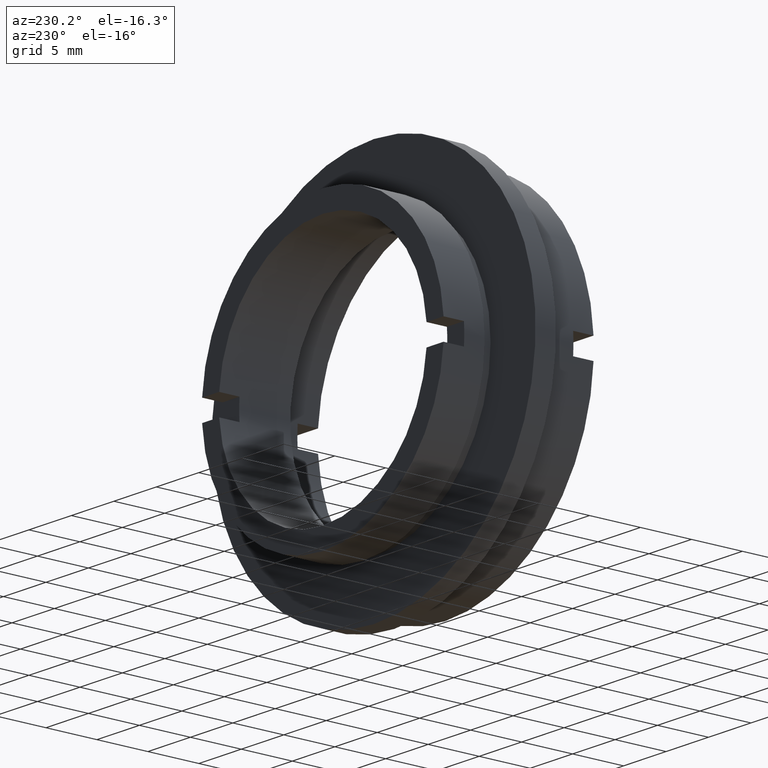
[diagram: clean part render]
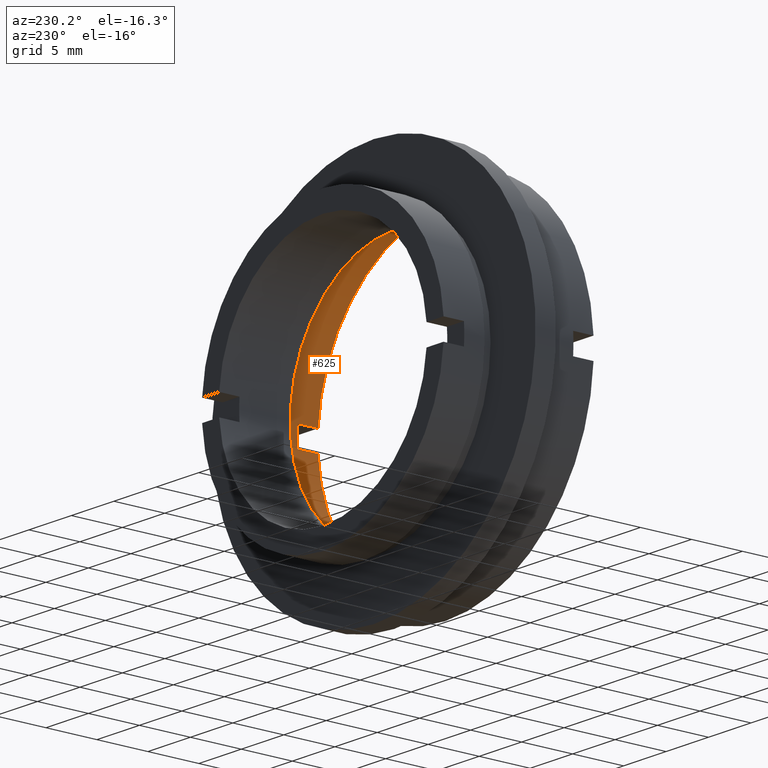
[diagram: same view with one face highlighted and labeled with its STEP entity id]
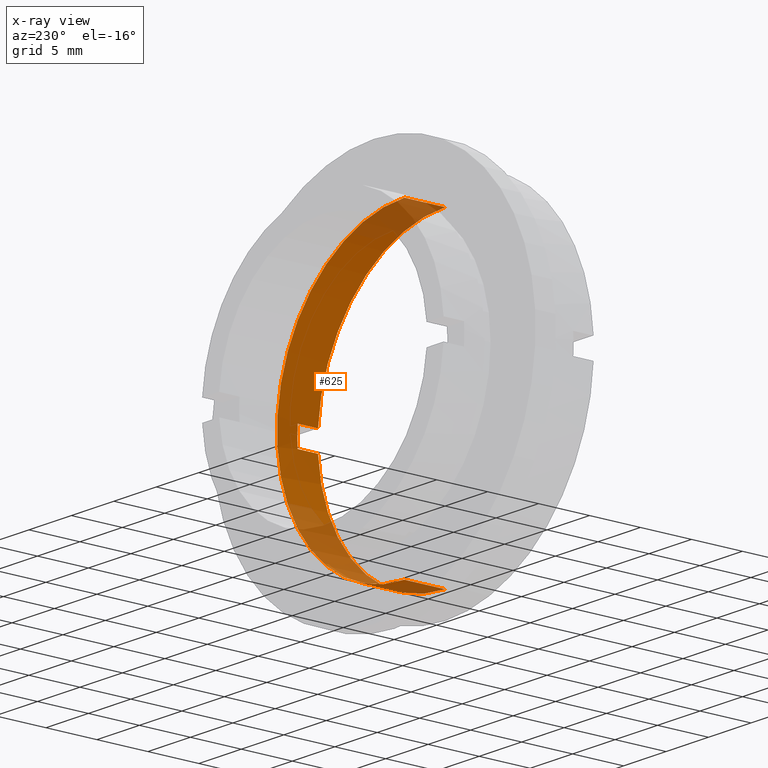
[diagram: x-ray of the same camera — body ghosted, the highlighted face saturated]
A machine part, auxiliary view. The second image highlights one B-rep face of the part: STEP entity #625.
The next image is the same camera in x-ray: the body ghosted, the highlighted face saturated — about 28% of this face is hidden behind the body in this view.
In plain terms, the highlighted cylindrical surface (partial cylindrical patch) has radius 15 mm, axis along (-0, 1, -0).
Its self-contained STEP definition (entity closure, byte-faithful):
#18 = DIRECTION ( 'NONE',  ( -0.0000000000000000000, 1.000000000000000000, -0.0000000000000000000 ) ) ;
#36 = ORIENTED_EDGE ( 'NONE', *, *, #567, .F. ) ;
#85 = AXIS2_PLACEMENT_3D ( 'NONE', #380, #803, #647 ) ;
#125 = VERTEX_POINT ( 'NONE', #721 ) ;
#154 = VERTEX_POINT ( 'NONE', #1233 ) ;
#164 = CARTESIAN_POINT ( 'NONE',  ( 0.0000000000000000000, 1.999999999999998200, 0.0000000000000000000 ) ) ;
#178 = CARTESIAN_POINT ( 'NONE',  ( 0.0000000000000000000, 0.0000000000000000000, 0.0000000000000000000 ) ) ;
#185 = DIRECTION ( 'NONE',  ( 0.0000000000000000000, -1.000000000000000000, 0.0000000000000000000 ) ) ;
#186 = CIRCLE ( 'NONE', #1187, 14.99999999999999600 ) ;
#263 = CARTESIAN_POINT ( 'NONE',  ( 14.96662954709576000, 0.0000000000000000000, -0.9999999999999943400 ) ) ;
#265 = CYLINDRICAL_SURFACE ( 'NONE', #85, 14.99999999999999600 ) ;
#271 = EDGE_CURVE ( 'NONE', #578, #154, #1244, .T. ) ;
#353 = EDGE_CURVE ( 'NONE', #154, #1043, #1136, .T. ) ;
#355 = AXIS2_PLACEMENT_3D ( 'NONE', #178, #1283, #620 ) ;
#371 = CIRCLE ( 'NONE', #799, 14.99999999999999600 ) ;
#380 = CARTESIAN_POINT ( 'NONE',  ( 0.0000000000000000000, 22.67749945107591400, 0.0000000000000000000 ) ) ;
#385 = FACE_OUTER_BOUND ( 'NONE', #813, .T. ) ;
#417 = ORIENTED_EDGE ( 'NONE', *, *, #271, .F. ) ;
#431 = EDGE_CURVE ( 'NONE', #125, #1117, #804, .T. ) ;
#436 = LINE ( 'NONE', #1127, #484 ) ;
#451 = VECTOR ( 'NONE', #823, 1000.000000000000000 ) ;
#479 = CIRCLE ( 'NONE', #861, 14.99999999999999600 ) ;
#484 = VECTOR ( 'NONE', #185, 1000.000000000000000 ) ;
#541 = ORIENTED_EDGE ( 'NONE', *, *, #801, .T. ) ;
#545 = LINE ( 'NONE', #866, #451 ) ;
#550 = EDGE_CURVE ( 'NONE', #1058, #722, #436, .T. ) ;
#567 = EDGE_CURVE ( 'NONE', #1043, #1058, #479, .T. ) ;
#578 = VERTEX_POINT ( 'NONE', #660 ) ;
#620 = DIRECTION ( 'NONE',  ( 0.0000000000000000000, 0.0000000000000000000, 1.000000000000000000 ) ) ;
#625 = ADVANCED_FACE ( 'NONE', ( #385 ), #265, .F. ) ;
#647 = DIRECTION ( 'NONE',  ( 0.0000000000000000000, 0.0000000000000000000, 1.000000000000000000 ) ) ;
#660 = CARTESIAN_POINT ( 'NONE',  ( 0.0000000000000000000, 0.0000000000000000000, 14.99999999999999600 ) ) ;
#665 = CARTESIAN_POINT ( 'NONE',  ( 1.836970198721029200E-015, 22.67749945107591400, -14.99999999999999600 ) ) ;
#671 = DIRECTION ( 'NONE',  ( 0.0000000000000000000, 0.0000000000000000000, 1.000000000000000000 ) ) ;
#686 = CARTESIAN_POINT ( 'NONE',  ( 14.96662954709576200, 1.999999999999998200, 1.000000000000000200 ) ) ;
#687 = DIRECTION ( 'NONE',  ( 0.0000000000000000000, 1.000000000000000000, 0.0000000000000000000 ) ) ;
#693 = ORIENTED_EDGE ( 'NONE', *, *, #353, .F. ) ;
#721 = CARTESIAN_POINT ( 'NONE',  ( 1.836970198721029200E-015, 0.0000000000000000000, -14.99999999999999600 ) ) ;
#722 = VERTEX_POINT ( 'NONE', #263 ) ;
#750 = DIRECTION ( 'NONE',  ( -0.0000000000000000000, 1.000000000000000000, -0.0000000000000000000 ) ) ;
#756 = CARTESIAN_POINT ( 'NONE',  ( 1.836970198721029200E-015, 4.000000000000000000, -14.99999999999999600 ) ) ;
#759 = CARTESIAN_POINT ( 'NONE',  ( 0.0000000000000000000, 0.0000000000000000000, 0.0000000000000000000 ) ) ;
#791 = VECTOR ( 'NONE', #1331, 1000.000000000000000 ) ;
#799 = AXIS2_PLACEMENT_3D ( 'NONE', #759, #750, #1005 ) ;
#801 = EDGE_CURVE ( 'NONE', #1338, #1117, #186, .T. ) ;
#803 = DIRECTION ( 'NONE',  ( -0.0000000000000000000, 1.000000000000000000, -0.0000000000000000000 ) ) ;
#804 = LINE ( 'NONE', #665, #791 ) ;
#813 = EDGE_LOOP ( 'NONE', ( #1088, #1287, #1324, #36, #693, #417, #923, #541 ) ) ;
#823 = DIRECTION ( 'NONE',  ( -0.0000000000000000000, 1.000000000000000000, -0.0000000000000000000 ) ) ;
#861 = AXIS2_PLACEMENT_3D ( 'NONE', #164, #687, #671 ) ;
#866 = CARTESIAN_POINT ( 'NONE',  ( 0.0000000000000000000, 22.67749945107591400, 14.99999999999999600 ) ) ;
#906 = DIRECTION ( 'NONE',  ( 0.0000000000000000000, 0.0000000000000000000, 1.000000000000000000 ) ) ;
#918 = CARTESIAN_POINT ( 'NONE',  ( 0.0000000000000000000, 4.000000000000000000, 0.0000000000000000000 ) ) ;
#923 = ORIENTED_EDGE ( 'NONE', *, *, #1114, .T. ) ;
#929 = VECTOR ( 'NONE', #18, 1000.000000000000000 ) ;
#1001 = EDGE_CURVE ( 'NONE', #722, #125, #371, .T. ) ;
#1003 = CARTESIAN_POINT ( 'NONE',  ( 0.0000000000000000000, 4.000000000000000000, 14.99999999999999600 ) ) ;
#1005 = DIRECTION ( 'NONE',  ( 0.0000000000000000000, 0.0000000000000000000, 1.000000000000000000 ) ) ;
#1035 = CARTESIAN_POINT ( 'NONE',  ( 14.96662954709576200, 22.67749945107591400, 1.000000000000003800 ) ) ;
#1043 = VERTEX_POINT ( 'NONE', #686 ) ;
#1058 = VERTEX_POINT ( 'NONE', #1103 ) ;
#1088 = ORIENTED_EDGE ( 'NONE', *, *, #431, .F. ) ;
#1103 = CARTESIAN_POINT ( 'NONE',  ( 14.96662954709576000, 1.999999999999998200, -0.9999999999999943400 ) ) ;
#1114 = EDGE_CURVE ( 'NONE', #578, #1338, #545, .T. ) ;
#1117 = VERTEX_POINT ( 'NONE', #756 ) ;
#1127 = CARTESIAN_POINT ( 'NONE',  ( 14.96662954709576000, 22.67749945107591400, -0.9999999999999943400 ) ) ;
#1136 = LINE ( 'NONE', #1035, #929 ) ;
#1187 = AXIS2_PLACEMENT_3D ( 'NONE', #918, #1191, #906 ) ;
#1191 = DIRECTION ( 'NONE',  ( -0.0000000000000000000, 1.000000000000000000, -0.0000000000000000000 ) ) ;
#1233 = CARTESIAN_POINT ( 'NONE',  ( 14.96662954709576200, 0.0000000000000000000, 1.000000000000003800 ) ) ;
#1244 = CIRCLE ( 'NONE', #355, 14.99999999999999600 ) ;
#1283 = DIRECTION ( 'NONE',  ( -0.0000000000000000000, 1.000000000000000000, -0.0000000000000000000 ) ) ;
#1287 = ORIENTED_EDGE ( 'NONE', *, *, #1001, .F. ) ;
#1324 = ORIENTED_EDGE ( 'NONE', *, *, #550, .F. ) ;
#1331 = DIRECTION ( 'NONE',  ( -0.0000000000000000000, 1.000000000000000000, -0.0000000000000000000 ) ) ;
#1338 = VERTEX_POINT ( 'NONE', #1003 ) ;